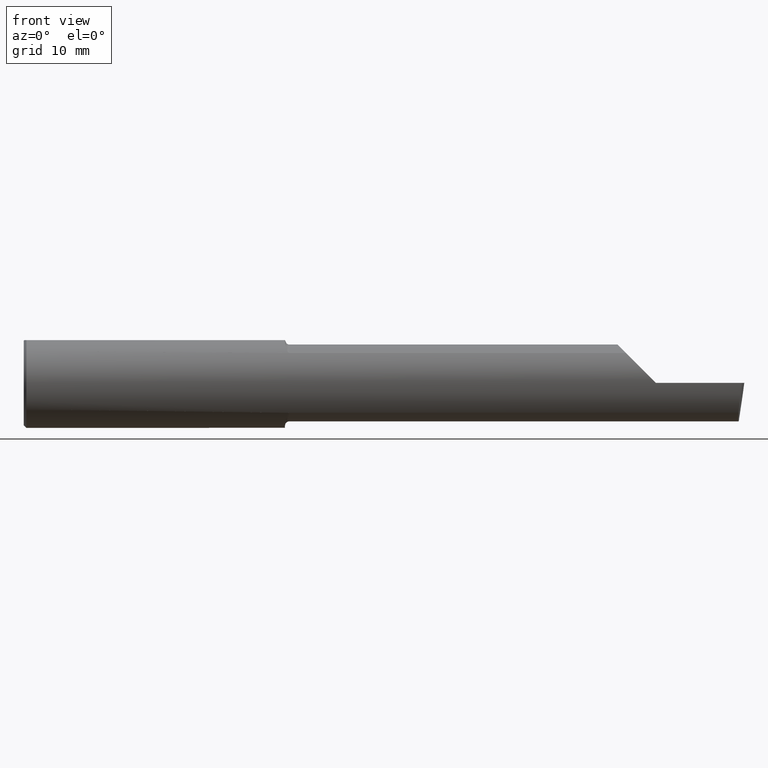
[diagram: clean part render]
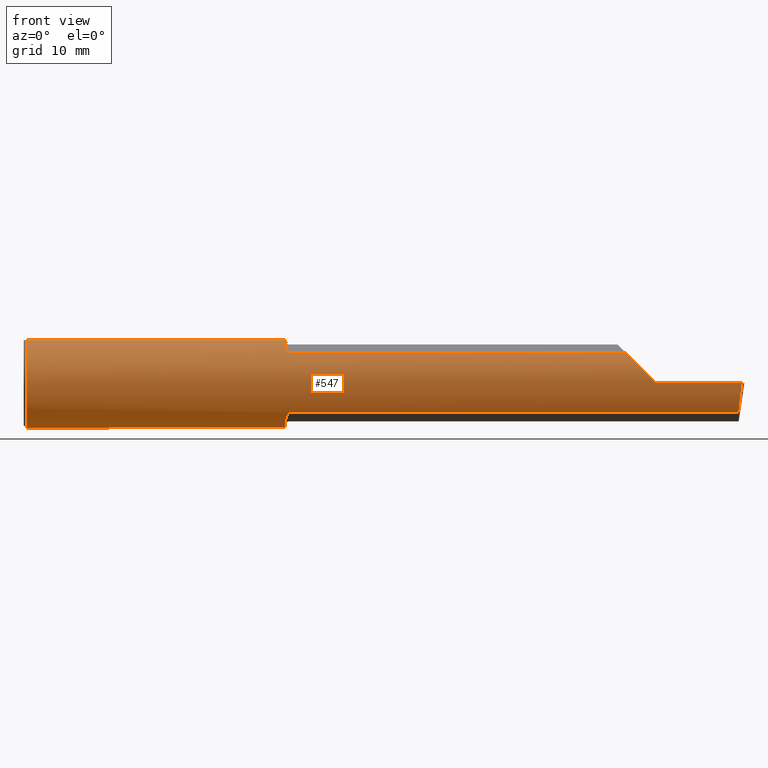
[diagram: same view with one face highlighted and labeled with its STEP entity id]
A machine part, front view. The second image highlights one B-rep face of the part: STEP entity #547.
In plain terms, the highlighted cylindrical surface (partial cylindrical patch) has radius 6.3462 mm, axis along (-1, -0, -0).
Its self-contained STEP definition (entity closure, byte-faithful):
#4 =( BOUNDED_CURVE ( )  B_SPLINE_CURVE ( 3, ( #99, #786, #346, #44 ),
 .UNSPECIFIED., .F., .T. ) 
 B_SPLINE_CURVE_WITH_KNOTS ( ( 4, 4 ),
 ( 4.712388980384687898, 5.438654041019562513 ),
 .UNSPECIFIED. ) 
 CURVE ( )  GEOMETRIC_REPRESENTATION_ITEM ( )  RATIONAL_B_SPLINE_CURVE ( ( 1.000000000000000000, 0.9565258159411005323, 0.9565258159411005323, 1.000000000000000000 ) ) 
 REPRESENTATION_ITEM ( '' )  );
#12 = CARTESIAN_POINT ( 'NONE',  ( 1.450000000000000178, -0.08036415094339748044, -0.2365726648265746579 ) ) ;
#13 = EDGE_CURVE ( 'NONE', #714, #293, #352, .T. ) ;
#23 = ORIENTED_EDGE ( 'NONE', *, *, #289, .F. ) ;
#26 = FACE_OUTER_BOUND ( 'NONE', #126, .T. ) ;
#31 = VERTEX_POINT ( 'NONE', #229 ) ;
#34 = CIRCLE ( 'NONE', #133, 0.2498499999999999888 ) ;
#42 = VECTOR ( 'NONE', #528, 39.37007874015748143 ) ;
#44 = CARTESIAN_POINT ( 'NONE',  ( 3.344079160038590626, -0.1868028301886809628, 0.1659208399614071627 ) ) ;
#47 = CARTESIAN_POINT ( 'NONE',  ( 1.472243150415551538, -0.1862809296394753733, 0.1665094106511982308 ) ) ;
#50 = VECTOR ( 'NONE', #787, 39.37007874015748143 ) ;
#51 = CARTESIAN_POINT ( 'NONE',  ( 0.000000000000000000, 0.07650098038587481442, 0.2378500000000000059 ) ) ;
#52 = CARTESIAN_POINT ( 'NONE',  ( 1.473547768521293655, -0.1868028301886799636, -0.1659208399614080232 ) ) ;
#57 = VERTEX_POINT ( 'NONE', #635 ) ;
#66 = ORIENTED_EDGE ( 'NONE', *, *, #727, .T. ) ;
#67 = CARTESIAN_POINT ( 'NONE',  ( 0.01499999999999999771, 0.07650098038587481442, 0.2378500000000000059 ) ) ;
#81 = CARTESIAN_POINT ( 'NONE',  ( 0.01499999999999999771, 0.000000000000000000, 0.000000000000000000 ) ) ;
#84 = AXIS2_PLACEMENT_3D ( 'NONE', #722, #399, #729 ) ;
#92 = VECTOR ( 'NONE', #440, 39.37007874015748143 ) ;
#99 = CARTESIAN_POINT ( 'NONE',  ( 3.509999999999999787, -0.2498499999999999610, -6.245698675651499853E-17 ) ) ;
#109 = CARTESIAN_POINT ( 'NONE',  ( 1.461285743882608124, -0.1704402150608123057, -0.1827701868778690564 ) ) ;
#112 = CARTESIAN_POINT ( 'NONE',  ( 1.450332084145230072, -0.1014027185340455883, 0.2286231260779308938 ) ) ;
#117 = CARTESIAN_POINT ( 'NONE',  ( 0.000000000000000000, -0.07650098038587477278, 0.2378500000000000059 ) ) ;
#119 = CARTESIAN_POINT ( 'NONE',  ( 1.474999999999999867, -0.1868028301886799636, 0.1659208399614079399 ) ) ;
#126 = EDGE_LOOP ( 'NONE', ( #550, #648, #407, #290, #292, #23, #492, #66, #772, #741, #583, #793, #299 ) ) ;
#129 = DIRECTION ( 'NONE',  ( -1.000000000000000000, -0.000000000000000000, -0.000000000000000000 ) ) ;
#133 = AXIS2_PLACEMENT_3D ( 'NONE', #479, #405, #424 ) ;
#142 = LINE ( 'NONE', #505, #413 ) ;
#169 = CARTESIAN_POINT ( 'NONE',  ( 1.465875558094660080, -0.1799506819598046259, -0.1733486322212174358 ) ) ;
#188 = LINE ( 'NONE', #117, #92 ) ;
#191 = CARTESIAN_POINT ( 'NONE',  ( 7.089685198749692867E-32, -0.2498499999999999610, 4.685946446163635703E-16 ) ) ;
#200 = CARTESIAN_POINT ( 'NONE',  ( 1.450000000000000178, -0.08036415094339748044, 0.2365726648265746579 ) ) ;
#208 = EDGE_CURVE ( 'NONE', #31, #426, #713, .T. ) ;
#214 = CARTESIAN_POINT ( 'NONE',  ( 3.973097331270538213, -0.2278791102234775934, -0.1196748990301323839 ) ) ;
#225 = CARTESIAN_POINT ( 'NONE',  ( 1.470138573936400128, -0.1849738682364335252, -0.1679602226613246818 ) ) ;
#229 = CARTESIAN_POINT ( 'NONE',  ( 3.968492717492761113, -0.1868028301886796583, -0.1659208399614084672 ) ) ;
#230 = CARTESIAN_POINT ( 'NONE',  ( 1.467018584423772198, -0.1817363555988622537, 0.1714722504633796052 ) ) ;
#231 = VERTEX_POINT ( 'NONE', #392 ) ;
#236 = VERTEX_POINT ( 'NONE', #337 ) ;
#252 = CARTESIAN_POINT ( 'NONE',  ( 3.968492717492761113, -0.1868028301886796583, -0.1659208399614084672 ) ) ;
#262 = DIRECTION ( 'NONE',  ( 1.000000000000000000, 0.000000000000000000, 0.000000000000000000 ) ) ;
#283 = CIRCLE ( 'NONE', #386, 0.2498499999999999888 ) ;
#288 = CARTESIAN_POINT ( 'NONE',  ( 1.450000000000000178, -0.08036415094339748044, 0.2365726648265746579 ) ) ;
#289 = EDGE_CURVE ( 'NONE', #686, #469, #616, .T. ) ;
#290 = ORIENTED_EDGE ( 'NONE', *, *, #704, .T. ) ;
#291 = CARTESIAN_POINT ( 'NONE',  ( 1.472232603162240583, -0.1862758070845880742, -0.1665151405181419242 ) ) ;
#292 = ORIENTED_EDGE ( 'NONE', *, *, #436, .F. ) ;
#293 = VERTEX_POINT ( 'NONE', #366 ) ;
#299 = ORIENTED_EDGE ( 'NONE', *, *, #400, .F. ) ;
#302 = EDGE_CURVE ( 'NONE', #236, #684, #34, .T. ) ;
#303 =( BOUNDED_CURVE ( )  B_SPLINE_CURVE ( 3, ( #252, #214, #397, #651 ),
 .UNSPECIFIED., .F., .F. ) 
 B_SPLINE_CURVE_WITH_KNOTS ( ( 4, 4 ),
 ( 0.6344818218799027632, 1.360746882514782818 ),
 .UNSPECIFIED. ) 
 CURVE ( )  GEOMETRIC_REPRESENTATION_ITEM ( )  RATIONAL_B_SPLINE_CURVE ( ( 1.000000000000000000, 0.9565258159410998662, 0.9565258159410998662, 1.000000000000000000 ) ) 
 REPRESENTATION_ITEM ( '' )  );
#319 = CARTESIAN_POINT ( 'NONE',  ( 1.457341173198633433, -0.1582250006961565814, -0.1936724403215120405 ) ) ;
#320 = DIRECTION ( 'NONE',  ( -1.000000000000000000, -0.000000000000000000, -0.000000000000000000 ) ) ;
#322 = DIRECTION ( 'NONE',  ( 0.000000000000000000, 0.000000000000000000, 1.000000000000000000 ) ) ;
#337 = CARTESIAN_POINT ( 'NONE',  ( 0.01499999999999999771, 0.000000000000000000, -0.2498499999999999888 ) ) ;
#346 = CARTESIAN_POINT ( 'NONE',  ( 3.390325100969867389, -0.2278791102234781485, 0.1196748990301310239 ) ) ;
#347 = VECTOR ( 'NONE', #320, 39.37007874015748143 ) ;
#352 = LINE ( 'NONE', #51, #50 ) ;
#362 = CARTESIAN_POINT ( 'NONE',  ( 1.461268146151109448, -0.1703904609315286256, 0.1828159088808239408 ) ) ;
#364 = DIRECTION ( 'NONE',  ( 0.000000000000000000, 0.000000000000000000, -1.000000000000000000 ) ) ;
#365 = VERTEX_POINT ( 'NONE', #394 ) ;
#366 = CARTESIAN_POINT ( 'NONE',  ( 1.450000000000000178, 0.07650098038587482829, 0.2378500000000000059 ) ) ;
#377 = DIRECTION ( 'NONE',  ( 0.000000000000000000, 0.000000000000000000, 1.000000000000000000 ) ) ;
#386 = AXIS2_PLACEMENT_3D ( 'NONE', #746, #685, #364 ) ;
#392 = CARTESIAN_POINT ( 'NONE',  ( 1.450000000000000178, -0.08036415094339748044, -0.2365726648265746579 ) ) ;
#394 = CARTESIAN_POINT ( 'NONE',  ( 3.509999999999999787, -0.2498499999999999610, -6.245698675651499853E-17 ) ) ;
#397 = CARTESIAN_POINT ( 'NONE',  ( 3.979623920331823328, -0.2498500000000000443, -0.06185424669427486838 ) ) ;
#399 = DIRECTION ( 'NONE',  ( 1.000000000000000000, 0.000000000000000000, 0.000000000000000000 ) ) ;
#400 = EDGE_CURVE ( 'NONE', #426, #231, #558, .T. ) ;
#405 = DIRECTION ( 'NONE',  ( -1.000000000000000000, -0.000000000000000000, -0.000000000000000000 ) ) ;
#407 = ORIENTED_EDGE ( 'NONE', *, *, #710, .T. ) ;
#413 = VECTOR ( 'NONE', #262, 39.37007874015748143 ) ;
#415 = EDGE_CURVE ( 'NONE', #714, #236, #520, .T. ) ;
#417 = CARTESIAN_POINT ( 'NONE',  ( 1.470144309637440916, -0.1849788583324338820, 0.1679547276881060425 ) ) ;
#424 = DIRECTION ( 'NONE',  ( 0.000000000000000000, 0.000000000000000000, 1.000000000000000000 ) ) ;
#426 = VERTEX_POINT ( 'NONE', #697 ) ;
#434 = CYLINDRICAL_SURFACE ( 'NONE', #661, 0.2498499999999999888 ) ;
#435 = VERTEX_POINT ( 'NONE', #756 ) ;
#436 = EDGE_CURVE ( 'NONE', #469, #448, #142, .T. ) ;
#440 = DIRECTION ( 'NONE',  ( -1.000000000000000000, -0.000000000000000000, -0.000000000000000000 ) ) ;
#448 = VERTEX_POINT ( 'NONE', #634 ) ;
#453 = CIRCLE ( 'NONE', #84, 0.2498499999999999888 ) ;
#464 = CARTESIAN_POINT ( 'NONE',  ( 0.01499999999998191669, -0.07650098038590480432, 0.2378500000000000059 ) ) ;
#469 = VERTEX_POINT ( 'NONE', #641 ) ;
#473 = CARTESIAN_POINT ( 'NONE',  ( 1.469285582744839447, -0.1841881072713814904, -0.1688230283719343860 ) ) ;
#479 = CARTESIAN_POINT ( 'NONE',  ( 0.01499999999999999771, 0.000000000000000000, 0.000000000000000000 ) ) ;
#482 = AXIS2_PLACEMENT_3D ( 'NONE', #81, #760, #322 ) ;
#485 = CARTESIAN_POINT ( 'NONE',  ( 1.474999999999999867, -0.1868028301886799636, -0.1659208399614079676 ) ) ;
#492 = ORIENTED_EDGE ( 'NONE', *, *, #783, .F. ) ;
#505 = CARTESIAN_POINT ( 'NONE',  ( 2.510000000000000231, -0.1868028301886796583, 0.1659208399614084672 ) ) ;
#520 = CIRCLE ( 'NONE', #482, 0.2498499999999999888 ) ;
#528 = DIRECTION ( 'NONE',  ( -1.000000000000000000, -0.000000000000000000, -0.000000000000000000 ) ) ;
#533 = CARTESIAN_POINT ( 'NONE',  ( 1.473548866468136209, -0.1868028301907327104, 0.1659208399590971772 ) ) ;
#539 = CARTESIAN_POINT ( 'NONE',  ( 1.451680550596499808, -0.1214972057705738795, 0.2186080375779518303 ) ) ;
#547 = ADVANCED_FACE ( 'NONE', ( #26 ), #434, .T. ) ;
#550 = ORIENTED_EDGE ( 'NONE', *, *, #208, .F. ) ;
#553 = EDGE_CURVE ( 'NONE', #31, #57, #303, .T. ) ;
#558 = B_SPLINE_CURVE_WITH_KNOTS ( 'NONE', 3,
 ( #485, #52, #291, #225, #473, #731, #169, #671, #109, #319, #572, #629, #636, #12 ),
 .UNSPECIFIED., .F., .F.,
 ( 4, 2, 2, 2, 2, 2, 4 ),
 ( 1.967619685288262155E-07, 0.0001090840123077892968, 0.0002179712626470497701, 0.0004357457633255818570, 0.0008712947646826478196, 0.001742392767396782347, 0.003484588772825049450 ),
 .UNSPECIFIED. ) ;
#572 = CARTESIAN_POINT ( 'NONE',  ( 1.455537042546466875, -0.1495003888704994066, -0.2004994225712669054 ) ) ;
#583 = ORIENTED_EDGE ( 'NONE', *, *, #13, .T. ) ;
#606 = CARTESIAN_POINT ( 'NONE',  ( 1.452700302592143000, -0.1312404656039934114, 0.2128935242986060017 ) ) ;
#613 = CARTESIAN_POINT ( 'NONE',  ( 1.465857071685140678, -0.1799228808997985485, 0.1733778622677442927 ) ) ;
#616 = B_SPLINE_CURVE_WITH_KNOTS ( 'NONE', 3,
 ( #200, #706, #112, #539, #606, #792, #788, #362, #740, #613, #230, #654, #417, #47, #533, #119 ),
 .UNSPECIFIED., .F., .F.,
 ( 4, 2, 2, 2, 2, 2, 2, 4 ),
 ( 0.0001034694911878371434, 0.0009591263138367667196, 0.001814783136485696160, 0.002670439959134624300, 0.003098268370459085225, 0.003312182576121316339, 0.003419139678952427559, 0.003526096781783538345 ),
 .UNSPECIFIED. ) ;
#629 = CARTESIAN_POINT ( 'NONE',  ( 1.451227564404961479, -0.1217005943024303538, -0.2193523119135132315 ) ) ;
#634 = CARTESIAN_POINT ( 'NONE',  ( 3.344079160038590626, -0.1868028301886809628, 0.1659208399614071627 ) ) ;
#635 = CARTESIAN_POINT ( 'NONE',  ( 3.987221270274236229, -0.2498499999999999888, -1.346590301211605106E-16 ) ) ;
#636 = CARTESIAN_POINT ( 'NONE',  ( 1.449999999999990186, -0.1016924291521898865, -0.2293274111511736379 ) ) ;
#641 = CARTESIAN_POINT ( 'NONE',  ( 1.474999999999999867, -0.1868028301886799636, 0.1659208399614079399 ) ) ;
#648 = ORIENTED_EDGE ( 'NONE', *, *, #553, .T. ) ;
#650 = CARTESIAN_POINT ( 'NONE',  ( 2.510000000000000231, -0.1868028301886796583, -0.1659208399614084672 ) ) ;
#651 = CARTESIAN_POINT ( 'NONE',  ( 3.987221270274236229, -0.2498499999999999888, -1.346590301211605106E-16 ) ) ;
#654 = CARTESIAN_POINT ( 'NONE',  ( 1.469290397284158667, -0.1841927918507057227, 0.1688179232533549290 ) ) ;
#660 = LINE ( 'NONE', #191, #347 ) ;
#661 = AXIS2_PLACEMENT_3D ( 'NONE', #692, #129, #377 ) ;
#671 = CARTESIAN_POINT ( 'NONE',  ( 1.462797058507745218, -0.1743943839926594408, -0.1789958554125691825 ) ) ;
#684 = VERTEX_POINT ( 'NONE', #464 ) ;
#685 = DIRECTION ( 'NONE',  ( 1.000000000000000000, 0.000000000000000000, 0.000000000000000000 ) ) ;
#686 = VERTEX_POINT ( 'NONE', #288 ) ;
#692 = CARTESIAN_POINT ( 'NONE',  ( 0.000000000000000000, 0.000000000000000000, 0.000000000000000000 ) ) ;
#694 = EDGE_CURVE ( 'NONE', #231, #293, #453, .T. ) ;
#697 = CARTESIAN_POINT ( 'NONE',  ( 1.474999999999999867, -0.1868028301886799636, -0.1659208399614079676 ) ) ;
#704 = EDGE_CURVE ( 'NONE', #365, #448, #4, .T. ) ;
#706 = CARTESIAN_POINT ( 'NONE',  ( 1.449999999999999512, -0.09104204635388271627, 0.2329453649474652055 ) ) ;
#710 = EDGE_CURVE ( 'NONE', #57, #365, #660, .T. ) ;
#713 = LINE ( 'NONE', #650, #42 ) ;
#714 = VERTEX_POINT ( 'NONE', #67 ) ;
#722 = CARTESIAN_POINT ( 'NONE',  ( 1.450000000000000178, 0.000000000000000000, 0.000000000000000000 ) ) ;
#727 = EDGE_CURVE ( 'NONE', #435, #684, #188, .T. ) ;
#729 = DIRECTION ( 'NONE',  ( 0.000000000000000000, 0.000000000000000000, -1.000000000000000000 ) ) ;
#731 = CARTESIAN_POINT ( 'NONE',  ( 1.467016733372314530, -0.1817333077058775614, -0.1714754572696058910 ) ) ;
#740 = CARTESIAN_POINT ( 'NONE',  ( 1.462758562425230169, -0.1743135686468872958, 0.1790760091940035992 ) ) ;
#741 = ORIENTED_EDGE ( 'NONE', *, *, #415, .F. ) ;
#746 = CARTESIAN_POINT ( 'NONE',  ( 1.450000000000000178, 0.000000000000000000, 0.000000000000000000 ) ) ;
#756 = CARTESIAN_POINT ( 'NONE',  ( 1.450000000000000178, -0.07650098038590487370, 0.2378500000000000059 ) ) ;
#760 = DIRECTION ( 'NONE',  ( -1.000000000000000000, -0.000000000000000000, -0.000000000000000000 ) ) ;
#772 = ORIENTED_EDGE ( 'NONE', *, *, #302, .F. ) ;
#783 = EDGE_CURVE ( 'NONE', #435, #686, #283, .T. ) ;
#786 = CARTESIAN_POINT ( 'NONE',  ( 3.448145753305724259, -0.2498500000000001275, 0.06185424669427382061 ) ) ;
#787 = DIRECTION ( 'NONE',  ( 1.000000000000000000, 0.000000000000000000, 0.000000000000000000 ) ) ;
#788 = CARTESIAN_POINT ( 'NONE',  ( 1.457343635746626953, -0.1582230848692703640, 0.1936715022401944153 ) ) ;
#792 = CARTESIAN_POINT ( 'NONE',  ( 1.455553274544309383, -0.1495649063853955740, 0.2004446339470377925 ) ) ;
#793 = ORIENTED_EDGE ( 'NONE', *, *, #694, .F. ) ;